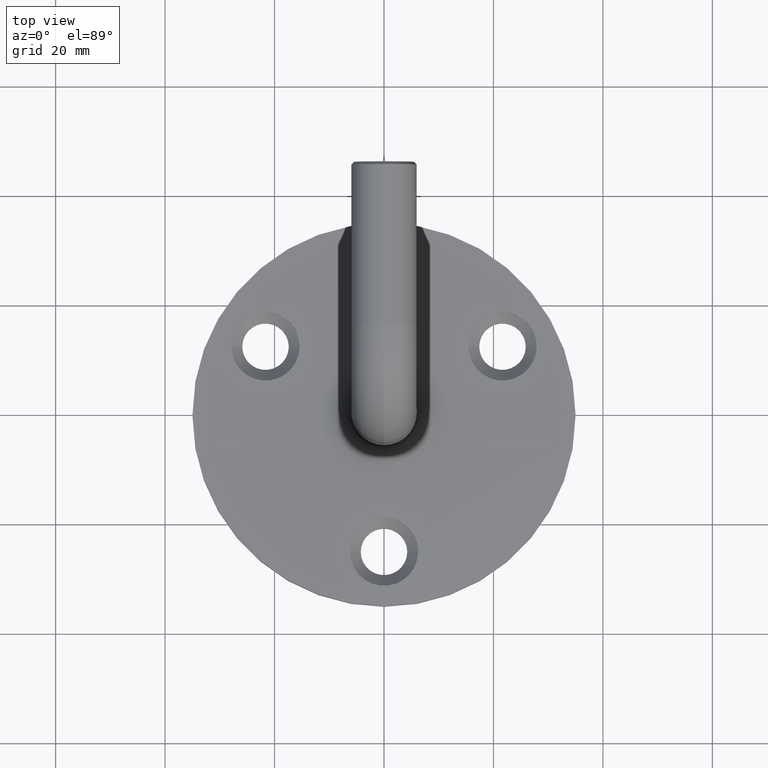
[diagram: clean part render]
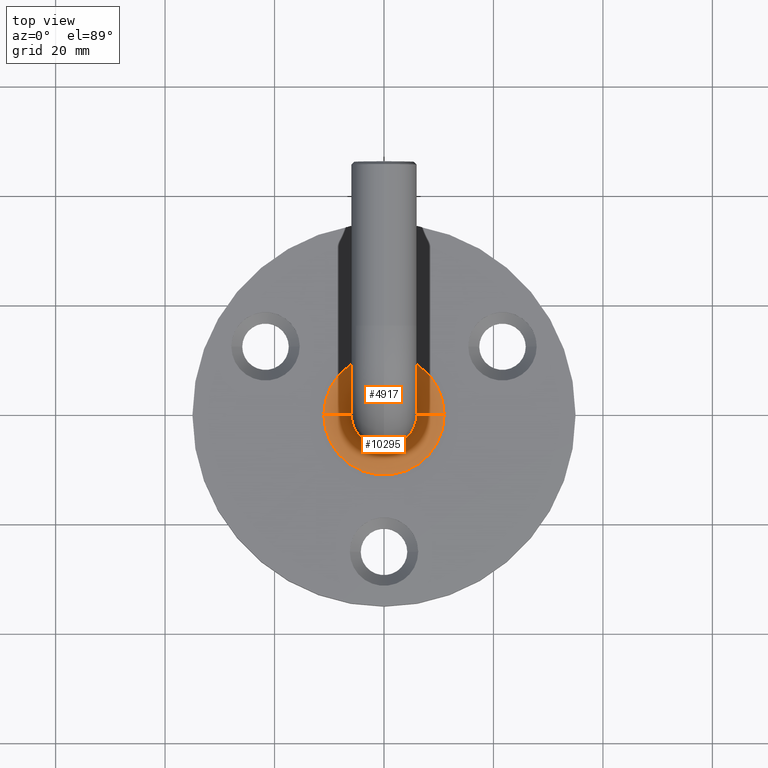
[diagram: same view with one multi-face feature highlighted, each face labeled with its STEP entity id]
A machine part, top view. The highlighted faces form ONE feature: a constant-radius fillet chain: 2 tangent blend faces with common blend radius 5 mm. The faces share edges in the B-rep.
Their STEP definitions:
[1] entity #4917 (Torus):
#67 = ORIENTED_EDGE ( 'NONE', *, *, #4985, .F. ) ;
#485 = CARTESIAN_POINT ( 'NONE',  ( 11.00000000000000178, -1.156482317317871133E-15, 5.000000000000000888 ) ) ;
#583 = VERTEX_POINT ( 'NONE', #14071 ) ;
#949 = AXIS2_PLACEMENT_3D ( 'NONE', #1737, #5352, #4041 ) ;
#1248 = VERTEX_POINT ( 'NONE', #13426 ) ;
#1583 = EDGE_LOOP ( 'NONE', ( #10905, #15140, #5417, #14652, #67 ) ) ;
#1604 = EDGE_CURVE ( 'NONE', #8609, #583, #15204, .T. ) ;
#1737 = CARTESIAN_POINT ( 'NONE',  ( -11.00000000000000178, 1.906291617442174932E-16, 10.00000000000000178 ) ) ;
#2426 = DIRECTION ( 'NONE',  ( 0.000000000000000000, 0.000000000000000000, 1.000000000000000000 ) ) ;
#2757 = DIRECTION ( 'NONE',  ( 1.000000000000000000, 0.000000000000000000, 0.000000000000000000 ) ) ;
#2854 = CIRCLE ( 'NONE', #11220, 11.00000000000000178 ) ;
#3296 = AXIS2_PLACEMENT_3D ( 'NONE', #4793, #6368, #14690 ) ;
#3328 = EDGE_CURVE ( 'NONE', #7666, #8609, #10441, .T. ) ;
#3494 = CARTESIAN_POINT ( 'NONE',  ( 0.000000000000000000, -1.156482317317871133E-15, 10.00000000000000178 ) ) ;
#3869 = EDGE_CURVE ( 'NONE', #583, #1248, #8558, .T. ) ;
#4041 = DIRECTION ( 'NONE',  ( -1.000000000000000000, 1.224646799147353454E-16, 0.000000000000000000 ) ) ;
#4793 = CARTESIAN_POINT ( 'NONE',  ( 0.000000000000000000, -1.156482317317871133E-15, 10.00000000000000178 ) ) ;
#4917 = ADVANCED_FACE ( 'NONE', ( #8607 ), #6147, .F. ) ;
#4985 = EDGE_CURVE ( 'NONE', #1248, #11645, #2854, .T. ) ;
#5104 = DIRECTION ( 'NONE',  ( -0.000000000000000000, -0.000000000000000000, -1.000000000000000000 ) ) ;
#5352 = DIRECTION ( 'NONE',  ( 1.224646799147353207E-16, 1.000000000000000000, -0.000000000000000000 ) ) ;
#5417 = ORIENTED_EDGE ( 'NONE', *, *, #3328, .F. ) ;
#5569 = CARTESIAN_POINT ( 'NONE',  ( 11.00000000000000178, -1.156482317317871133E-15, 10.00000000000000178 ) ) ;
#5802 = AXIS2_PLACEMENT_3D ( 'NONE', #3494, #11947, #8197 ) ;
#6036 = CARTESIAN_POINT ( 'NONE',  ( 0.000000000000000000, -1.156482317317871133E-15, 10.00000000000000178 ) ) ;
#6147 = TOROIDAL_SURFACE ( 'NONE', #3296, 11.00000000000000178, 5.000000000000000000 ) ;
#6293 = AXIS2_PLACEMENT_3D ( 'NONE', #5569, #11464, #12857 ) ;
#6368 = DIRECTION ( 'NONE',  ( 0.000000000000000000, 0.000000000000000000, 1.000000000000000000 ) ) ;
#7666 = VERTEX_POINT ( 'NONE', #13589 ) ;
#7714 = AXIS2_PLACEMENT_3D ( 'NONE', #6036, #2426, #13483 ) ;
#7733 = EDGE_CURVE ( 'NONE', #7666, #11645, #14560, .T. ) ;
#8197 = DIRECTION ( 'NONE',  ( 1.000000000000000000, 0.000000000000000000, 0.000000000000000000 ) ) ;
#8558 = CIRCLE ( 'NONE', #949, 4.999999999999999112 ) ;
#8607 = FACE_OUTER_BOUND ( 'NONE', #1583, .T. ) ;
#8609 = VERTEX_POINT ( 'NONE', #13093 ) ;
#10030 = CARTESIAN_POINT ( 'NONE',  ( 0.000000000000000000, -1.156482317317871133E-15, 5.000000000000000000 ) ) ;
#10441 = CIRCLE ( 'NONE', #5802, 6.000000000000000888 ) ;
#10905 = ORIENTED_EDGE ( 'NONE', *, *, #3869, .F. ) ;
#11220 = AXIS2_PLACEMENT_3D ( 'NONE', #10030, #5104, #2757 ) ;
#11464 = DIRECTION ( 'NONE',  ( 0.000000000000000000, -1.000000000000000000, 0.000000000000000000 ) ) ;
#11645 = VERTEX_POINT ( 'NONE', #485 ) ;
#11947 = DIRECTION ( 'NONE',  ( 0.000000000000000000, 0.000000000000000000, 1.000000000000000000 ) ) ;
#12857 = DIRECTION ( 'NONE',  ( 0.000000000000000000, 0.000000000000000000, -1.000000000000000000 ) ) ;
#13093 = CARTESIAN_POINT ( 'NONE',  ( 0.000000000000000000, 6.000000000000000888, 10.00000000000000178 ) ) ;
#13426 = CARTESIAN_POINT ( 'NONE',  ( -11.00000000000000178, 1.906291617442173946E-16, 5.000000000000000888 ) ) ;
#13483 = DIRECTION ( 'NONE',  ( 1.000000000000000000, 0.000000000000000000, 0.000000000000000000 ) ) ;
#13589 = CARTESIAN_POINT ( 'NONE',  ( 6.000000000000000888, -1.156482317317871133E-15, 10.00000000000000178 ) ) ;
#14071 = CARTESIAN_POINT ( 'NONE',  ( -6.000000000000000888, -1.155325380426208949E-16, 10.00000000000000178 ) ) ;
#14560 = CIRCLE ( 'NONE', #6293, 5.000000000000000000 ) ;
#14652 = ORIENTED_EDGE ( 'NONE', *, *, #7733, .T. ) ;
#14690 = DIRECTION ( 'NONE',  ( 1.000000000000000000, 0.000000000000000000, 0.000000000000000000 ) ) ;
#15140 = ORIENTED_EDGE ( 'NONE', *, *, #1604, .F. ) ;
#15204 = CIRCLE ( 'NONE', #7714, 6.000000000000000888 ) ;
[2] entity #10295 (Torus):
#222 = TOROIDAL_SURFACE ( 'NONE', #368, 11.00000000000000178, 5.000000000000000000 ) ;
#368 = AXIS2_PLACEMENT_3D ( 'NONE', #442, #2962, #13835 ) ;
#442 = CARTESIAN_POINT ( 'NONE',  ( 0.000000000000000000, -1.156482317317871133E-15, 10.00000000000000178 ) ) ;
#485 = CARTESIAN_POINT ( 'NONE',  ( 11.00000000000000178, -1.156482317317871133E-15, 5.000000000000000888 ) ) ;
#523 = AXIS2_PLACEMENT_3D ( 'NONE', #4384, #5720, #6822 ) ;
#583 = VERTEX_POINT ( 'NONE', #14071 ) ;
#949 = AXIS2_PLACEMENT_3D ( 'NONE', #1737, #5352, #4041 ) ;
#979 = ORIENTED_EDGE ( 'NONE', *, *, #7797, .F. ) ;
#998 = EDGE_LOOP ( 'NONE', ( #14463, #9884, #979, #13200, #2340 ) ) ;
#1248 = VERTEX_POINT ( 'NONE', #13426 ) ;
#1737 = CARTESIAN_POINT ( 'NONE',  ( -11.00000000000000178, 1.906291617442174932E-16, 10.00000000000000178 ) ) ;
#2340 = ORIENTED_EDGE ( 'NONE', *, *, #13232, .F. ) ;
#2962 = DIRECTION ( 'NONE',  ( 0.000000000000000000, 0.000000000000000000, 1.000000000000000000 ) ) ;
#3179 = DIRECTION ( 'NONE',  ( 1.000000000000000000, 0.000000000000000000, 0.000000000000000000 ) ) ;
#3294 = CARTESIAN_POINT ( 'NONE',  ( 0.000000000000000000, -1.156482317317871133E-15, 10.00000000000000178 ) ) ;
#3869 = EDGE_CURVE ( 'NONE', #583, #1248, #8558, .T. ) ;
#4041 = DIRECTION ( 'NONE',  ( -1.000000000000000000, 1.224646799147353454E-16, 0.000000000000000000 ) ) ;
#4384 = CARTESIAN_POINT ( 'NONE',  ( 0.000000000000000000, -1.156482317317871133E-15, 5.000000000000000000 ) ) ;
#4498 = CARTESIAN_POINT ( 'NONE',  ( 0.000000000000000000, -1.156482317317871133E-15, 10.00000000000000178 ) ) ;
#5352 = DIRECTION ( 'NONE',  ( 1.224646799147353207E-16, 1.000000000000000000, -0.000000000000000000 ) ) ;
#5371 = VERTEX_POINT ( 'NONE', #15387 ) ;
#5569 = CARTESIAN_POINT ( 'NONE',  ( 11.00000000000000178, -1.156482317317871133E-15, 10.00000000000000178 ) ) ;
#5720 = DIRECTION ( 'NONE',  ( -0.000000000000000000, -0.000000000000000000, -1.000000000000000000 ) ) ;
#5839 = DIRECTION ( 'NONE',  ( 0.000000000000000000, 0.000000000000000000, 1.000000000000000000 ) ) ;
#6233 = AXIS2_PLACEMENT_3D ( 'NONE', #4498, #7042, #8208 ) ;
#6293 = AXIS2_PLACEMENT_3D ( 'NONE', #5569, #11464, #12857 ) ;
#6822 = DIRECTION ( 'NONE',  ( 1.000000000000000000, 0.000000000000000000, 0.000000000000000000 ) ) ;
#7042 = DIRECTION ( 'NONE',  ( 0.000000000000000000, 0.000000000000000000, 1.000000000000000000 ) ) ;
#7666 = VERTEX_POINT ( 'NONE', #13589 ) ;
#7733 = EDGE_CURVE ( 'NONE', #7666, #11645, #14560, .T. ) ;
#7797 = EDGE_CURVE ( 'NONE', #11645, #1248, #11552, .T. ) ;
#8208 = DIRECTION ( 'NONE',  ( 1.000000000000000000, 0.000000000000000000, 0.000000000000000000 ) ) ;
#8558 = CIRCLE ( 'NONE', #949, 4.999999999999999112 ) ;
#8748 = EDGE_CURVE ( 'NONE', #583, #5371, #13455, .T. ) ;
#9884 = ORIENTED_EDGE ( 'NONE', *, *, #3869, .T. ) ;
#10295 = ADVANCED_FACE ( 'NONE', ( #10839 ), #222, .F. ) ;
#10603 = CIRCLE ( 'NONE', #6233, 6.000000000000000888 ) ;
#10839 = FACE_OUTER_BOUND ( 'NONE', #998, .T. ) ;
#11464 = DIRECTION ( 'NONE',  ( 0.000000000000000000, -1.000000000000000000, 0.000000000000000000 ) ) ;
#11552 = CIRCLE ( 'NONE', #523, 11.00000000000000178 ) ;
#11645 = VERTEX_POINT ( 'NONE', #485 ) ;
#12857 = DIRECTION ( 'NONE',  ( 0.000000000000000000, 0.000000000000000000, -1.000000000000000000 ) ) ;
#13200 = ORIENTED_EDGE ( 'NONE', *, *, #7733, .F. ) ;
#13232 = EDGE_CURVE ( 'NONE', #5371, #7666, #10603, .T. ) ;
#13426 = CARTESIAN_POINT ( 'NONE',  ( -11.00000000000000178, 1.906291617442173946E-16, 5.000000000000000888 ) ) ;
#13455 = CIRCLE ( 'NONE', #15019, 6.000000000000000888 ) ;
#13589 = CARTESIAN_POINT ( 'NONE',  ( 6.000000000000000888, -1.156482317317871133E-15, 10.00000000000000178 ) ) ;
#13835 = DIRECTION ( 'NONE',  ( 1.000000000000000000, 0.000000000000000000, 0.000000000000000000 ) ) ;
#14071 = CARTESIAN_POINT ( 'NONE',  ( -6.000000000000000888, -1.155325380426208949E-16, 10.00000000000000178 ) ) ;
#14463 = ORIENTED_EDGE ( 'NONE', *, *, #8748, .F. ) ;
#14560 = CIRCLE ( 'NONE', #6293, 5.000000000000000000 ) ;
#15019 = AXIS2_PLACEMENT_3D ( 'NONE', #3294, #5839, #3179 ) ;
#15387 = CARTESIAN_POINT ( 'NONE',  ( 7.347880794884120722E-16, -6.000000000000001776, 10.00000000000000178 ) ) ;